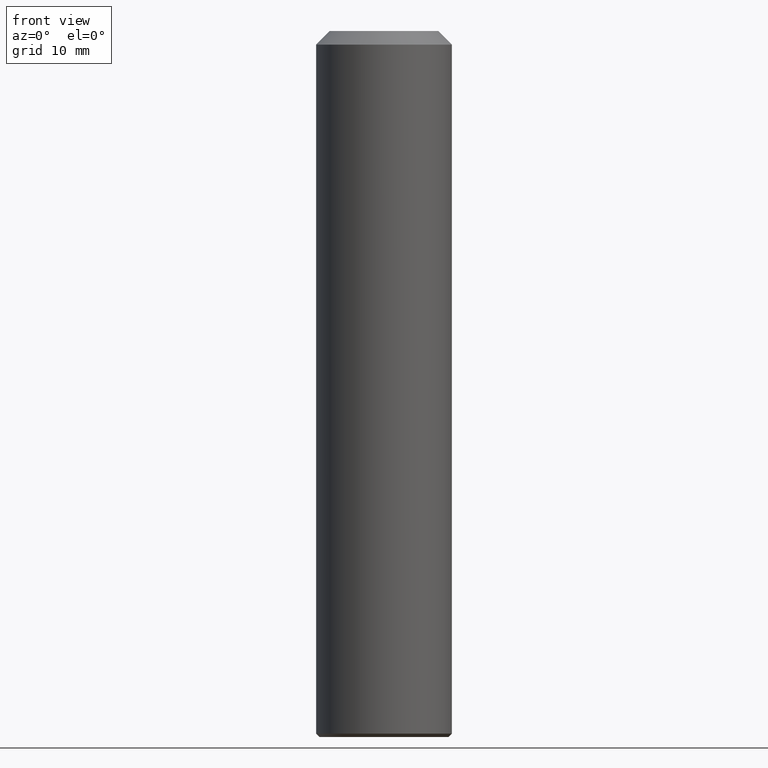
[diagram: clean part render]
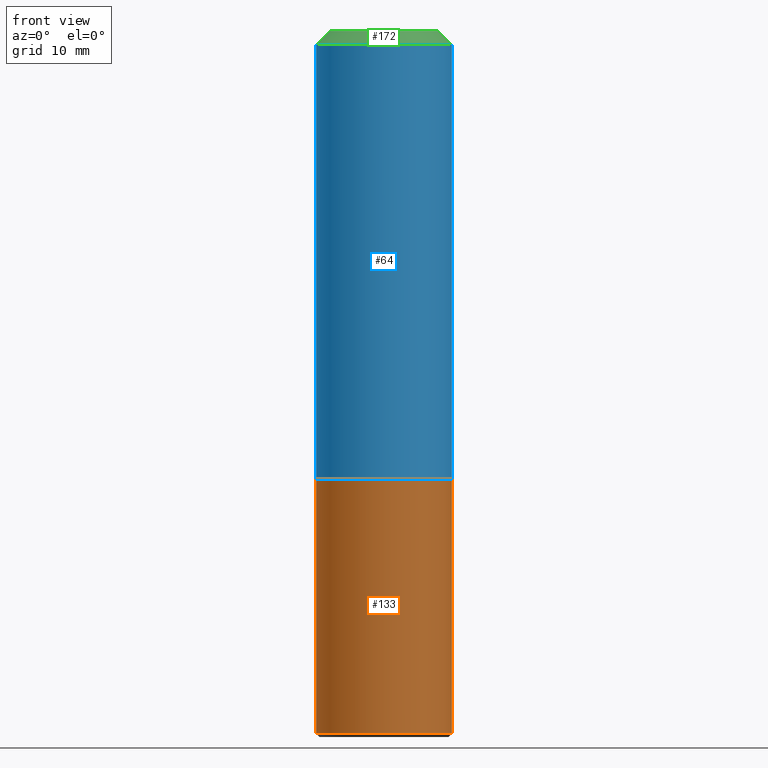
[diagram: same view with three faces highlighted in distinct colors, each labeled with its STEP entity id]
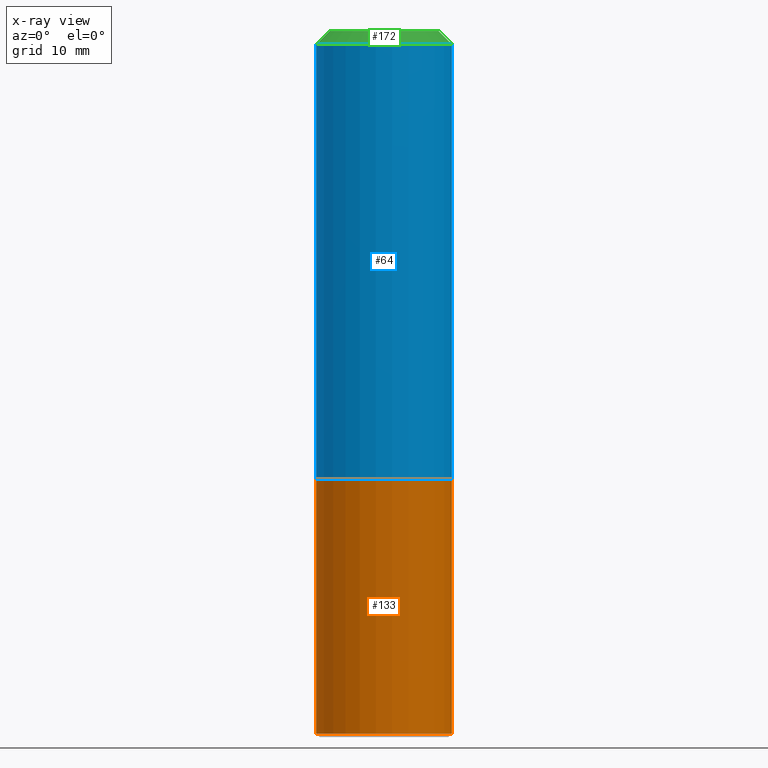
[diagram: x-ray of the same camera — body ghosted, the three highlighted faces saturated]
A machine part, front view with three faces highlighted in distinct colors.
The next image is the same camera in x-ray (body ghosted, the three faces saturated) — at least one of them is partly hidden behind the body in this view.
Their STEP definitions:

[orange] entity #133 — the highlighted cylindrical surface (bore or boss wall) has radius 10 mm, axis along (0, 0, 1).
#8 = CARTESIAN_POINT ( 'NONE',  ( 9.999999999999538147, 0.0000000000000000000, -66.00000000000007105 ) ) ;
#17 = DIRECTION ( 'NONE',  ( 1.000000000000000000, 0.0000000000000000000, -6.938893903907228378E-15 ) ) ;
#30 = EDGE_LOOP ( 'NONE', ( #98 ) ) ;
#56 = CYLINDRICAL_SURFACE ( 'NONE', #179, 10.00000000000000000 ) ;
#71 = DIRECTION ( 'NONE',  ( -7.337712398762083409E-15, 0.0000000000000000000, -1.000000000000000000 ) ) ;
#74 = CARTESIAN_POINT ( 'NONE',  ( -7.359903637248369730E-13, 0.0000000000000000000, -103.4999999999999858 ) ) ;
#78 = VERTEX_POINT ( 'NONE', #145 ) ;
#89 = DIRECTION ( 'NONE',  ( 1.000000000000000000, 0.0000000000000000000, -6.938893903907228378E-15 ) ) ;
#93 = CARTESIAN_POINT ( 'NONE',  ( -7.262281184793717379E-13, 0.0000000000000000000, -104.0000000000000000 ) ) ;
#98 = ORIENTED_EDGE ( 'NONE', *, *, #169, .F. ) ;
#104 = CARTESIAN_POINT ( 'NONE',  ( -4.608755367272936534E-13, 0.0000000000000000000, -66.00000000000000000 ) ) ;
#106 = DIRECTION ( 'NONE',  ( -6.982962677686267499E-15, -0.0000000000000000000, -1.000000000000000000 ) ) ;
#126 = CIRCLE ( 'NONE', #195, 10.00000000000000000 ) ;
#133 = ADVANCED_FACE ( 'NONE', ( #152, #207 ), #56, .T. ) ;
#137 = EDGE_CURVE ( 'NONE', #180, #180, #126, .T. ) ;
#143 = ORIENTED_EDGE ( 'NONE', *, *, #137, .T. ) ;
#145 = CARTESIAN_POINT ( 'NONE',  ( -10.00000000000074074, 0.0000000000000000000, -103.4999999999999147 ) ) ;
#152 = FACE_OUTER_BOUND ( 'NONE', #30, .T. ) ;
#166 = CIRCLE ( 'NONE', #182, 10.00000000000000533 ) ;
#169 = EDGE_CURVE ( 'NONE', #78, #78, #166, .T. ) ;
#179 = AXIS2_PLACEMENT_3D ( 'NONE', #93, #218, #89 ) ;
#180 = VERTEX_POINT ( 'NONE', #8 ) ;
#182 = AXIS2_PLACEMENT_3D ( 'NONE', #74, #71, #205 ) ;
#195 = AXIS2_PLACEMENT_3D ( 'NONE', #104, #106, #17 ) ;
#205 = DIRECTION ( 'NONE',  ( -1.000000000000000000, 0.0000000000000000000, 6.938893903907224433E-15 ) ) ;
#207 = FACE_OUTER_BOUND ( 'NONE', #212, .T. ) ;
#212 = EDGE_LOOP ( 'NONE', ( #143 ) ) ;
#218 = DIRECTION ( 'NONE',  ( 6.982962677686266711E-15, 0.0000000000000000000, 1.000000000000000000 ) ) ;

[blue] entity #64 — the highlighted cylindrical surface (bore or boss wall) has radius 10 mm, axis along (0, 0, 1).
#15 = CARTESIAN_POINT ( 'NONE',  ( -1.396592535537254604E-14, 0.0000000000000000000, -2.000000000000001776 ) ) ;
#18 = DIRECTION ( 'NONE',  ( 6.982962677686266711E-15, 0.0000000000000000000, 1.000000000000000000 ) ) ;
#37 = CIRCLE ( 'NONE', #114, 10.00000000000000000 ) ;
#39 = CARTESIAN_POINT ( 'NONE',  ( -7.262281184793717379E-13, 0.0000000000000000000, -104.0000000000000000 ) ) ;
#40 = DIRECTION ( 'NONE',  ( 6.982962677686266711E-15, 0.0000000000000000000, 1.000000000000000000 ) ) ;
#45 = VERTEX_POINT ( 'NONE', #110 ) ;
#50 = FACE_OUTER_BOUND ( 'NONE', #198, .T. ) ;
#62 = AXIS2_PLACEMENT_3D ( 'NONE', #39, #40, #173 ) ;
#64 = ADVANCED_FACE ( 'NONE', ( #50, #90 ), #157, .T. ) ;
#84 = AXIS2_PLACEMENT_3D ( 'NONE', #189, #222, #154 ) ;
#86 = EDGE_CURVE ( 'NONE', #95, #95, #203, .T. ) ;
#90 = FACE_OUTER_BOUND ( 'NONE', #186, .T. ) ;
#95 = VERTEX_POINT ( 'NONE', #139 ) ;
#100 = EDGE_CURVE ( 'NONE', #45, #45, #37, .T. ) ;
#110 = CARTESIAN_POINT ( 'NONE',  ( 9.999999999999985789, 0.0000000000000000000, -2.000000000000071498 ) ) ;
#114 = AXIS2_PLACEMENT_3D ( 'NONE', #15, #18, #136 ) ;
#136 = DIRECTION ( 'NONE',  ( 1.000000000000000000, 0.0000000000000000000, -6.982261990806648555E-15 ) ) ;
#139 = CARTESIAN_POINT ( 'NONE',  ( 9.999999999999538147, 0.0000000000000000000, -66.00000000000007105 ) ) ;
#154 = DIRECTION ( 'NONE',  ( 1.000000000000000000, 0.0000000000000000000, -6.938893903907228378E-15 ) ) ;
#157 = CYLINDRICAL_SURFACE ( 'NONE', #62, 10.00000000000000000 ) ;
#165 = ORIENTED_EDGE ( 'NONE', *, *, #100, .F. ) ;
#167 = ORIENTED_EDGE ( 'NONE', *, *, #86, .F. ) ;
#173 = DIRECTION ( 'NONE',  ( 1.000000000000000000, 0.0000000000000000000, -6.938893903907228378E-15 ) ) ;
#186 = EDGE_LOOP ( 'NONE', ( #165 ) ) ;
#189 = CARTESIAN_POINT ( 'NONE',  ( -4.608755367272936534E-13, 0.0000000000000000000, -66.00000000000000000 ) ) ;
#198 = EDGE_LOOP ( 'NONE', ( #167 ) ) ;
#203 = CIRCLE ( 'NONE', #84, 10.00000000000000000 ) ;
#222 = DIRECTION ( 'NONE',  ( -6.982962677686267499E-15, -0.0000000000000000000, -1.000000000000000000 ) ) ;

[green] entity #172 — the highlighted conical surface has half-angle 45 deg.
#4 = VERTEX_POINT ( 'NONE', #63 ) ;
#9 = EDGE_LOOP ( 'NONE', ( #79 ) ) ;
#15 = CARTESIAN_POINT ( 'NONE',  ( -1.396592535537254604E-14, 0.0000000000000000000, -2.000000000000001776 ) ) ;
#18 = DIRECTION ( 'NONE',  ( 6.982962677686266711E-15, 0.0000000000000000000, 1.000000000000000000 ) ) ;
#22 = EDGE_CURVE ( 'NONE', #4, #4, #214, .T. ) ;
#37 = CIRCLE ( 'NONE', #114, 10.00000000000000000 ) ;
#45 = VERTEX_POINT ( 'NONE', #110 ) ;
#47 = AXIS2_PLACEMENT_3D ( 'NONE', #209, #119, #121 ) ;
#51 = AXIS2_PLACEMENT_3D ( 'NONE', #132, #107, #116 ) ;
#63 = CARTESIAN_POINT ( 'NONE',  ( 7.999999999999992895, 0.0000000000000000000, -5.586370142149008320E-14 ) ) ;
#67 = EDGE_LOOP ( 'NONE', ( #112 ) ) ;
#79 = ORIENTED_EDGE ( 'NONE', *, *, #100, .T. ) ;
#100 = EDGE_CURVE ( 'NONE', #45, #45, #37, .T. ) ;
#107 = DIRECTION ( 'NONE',  ( 6.982962677686266711E-15, 0.0000000000000000000, 1.000000000000000000 ) ) ;
#110 = CARTESIAN_POINT ( 'NONE',  ( 9.999999999999985789, 0.0000000000000000000, -2.000000000000071498 ) ) ;
#112 = ORIENTED_EDGE ( 'NONE', *, *, #22, .F. ) ;
#114 = AXIS2_PLACEMENT_3D ( 'NONE', #15, #18, #136 ) ;
#116 = DIRECTION ( 'NONE',  ( 1.000000000000000000, 0.0000000000000000000, -6.982962677686266711E-15 ) ) ;
#119 = DIRECTION ( 'NONE',  ( -6.982962677686266711E-15, 0.0000000000000000000, -1.000000000000000000 ) ) ;
#121 = DIRECTION ( 'NONE',  ( -1.000000000000000000, 0.0000000000000000000, 6.982962677686266711E-15 ) ) ;
#132 = CARTESIAN_POINT ( 'NONE',  ( 0.0000000000000000000, 0.0000000000000000000, 0.0000000000000000000 ) ) ;
#136 = DIRECTION ( 'NONE',  ( 1.000000000000000000, 0.0000000000000000000, -6.982261990806648555E-15 ) ) ;
#156 = FACE_OUTER_BOUND ( 'NONE', #9, .T. ) ;
#172 = ADVANCED_FACE ( 'NONE', ( #156, #220 ), #208, .T. ) ;
#208 = CONICAL_SURFACE ( 'NONE', #47, 7.999999999999992895, 0.7853981633974496113 ) ;
#209 = CARTESIAN_POINT ( 'NONE',  ( 0.0000000000000000000, 0.0000000000000000000, 0.0000000000000000000 ) ) ;
#214 = CIRCLE ( 'NONE', #51, 7.999999999999992895 ) ;
#220 = FACE_BOUND ( 'NONE', #67, .T. ) ;